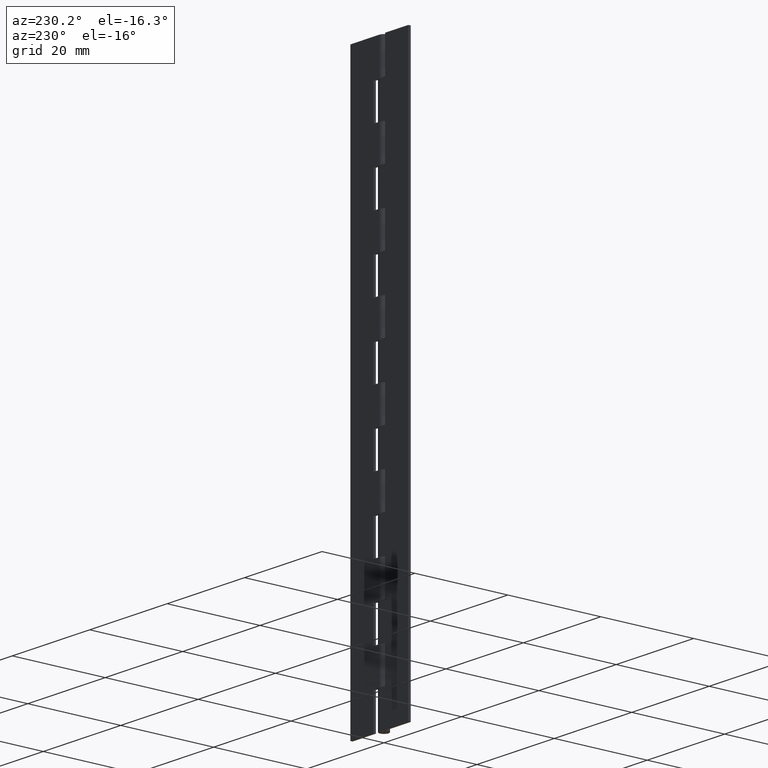
[diagram: clean part render]
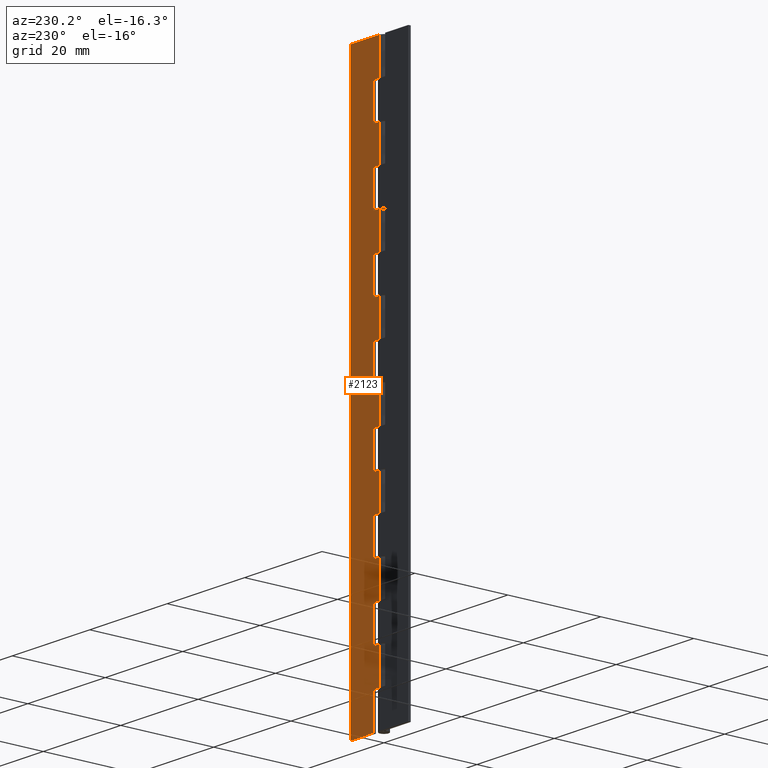
[diagram: same view with one face highlighted and labeled with its STEP entity id]
A machine part, auxiliary view. The second image highlights one B-rep face of the part: STEP entity #2123.
In plain terms, the highlighted face is a freeform B-spline surface patch.
Its self-contained STEP definition (entity closure, byte-faithful):
#51=CARTESIAN_POINT('',(0.0,1.0,112.500000000000000));
#52=VERTEX_POINT('',#51);
#72=CARTESIAN_POINT('',(1.500000000000000,1.0,112.500000000000000));
#73=VERTEX_POINT('',#72);
#74=CARTESIAN_POINT('',(1.500000000000000,1.0,112.500000000000000));
#75=CARTESIAN_POINT('',(0.0,1.0,112.500000000000000));
#76=QUASI_UNIFORM_CURVE('',1,(#74,#75),.UNSPECIFIED.,.F.,.U.);
#77=EDGE_CURVE('',#73,#52,#76,.T.);
#135=CARTESIAN_POINT('',(1.500000000000000,1.0,105.0));
#136=VERTEX_POINT('',#135);
#137=CARTESIAN_POINT('',(1.500000000000000,1.0,105.0));
#138=CARTESIAN_POINT('',(1.500000000000000,1.0,112.500000000000000));
#139=QUASI_UNIFORM_CURVE('',1,(#137,#138),.UNSPECIFIED.,.F.,.U.);
#140=EDGE_CURVE('',#136,#73,#139,.T.);
#155=CARTESIAN_POINT('',(0.0,1.0,105.0));
#156=VERTEX_POINT('',#155);
#212=CARTESIAN_POINT('',(0.0,1.0,105.0));
#213=CARTESIAN_POINT('',(1.500000000000000,1.0,105.0));
#214=QUASI_UNIFORM_CURVE('',1,(#212,#213),.UNSPECIFIED.,.F.,.U.);
#215=EDGE_CURVE('',#156,#136,#214,.T.);
#227=CARTESIAN_POINT('',(0.0,1.0,97.500000000000000));
#228=VERTEX_POINT('',#227);
#248=CARTESIAN_POINT('',(1.500000000000000,1.0,97.500000000000000));
#249=VERTEX_POINT('',#248);
#250=CARTESIAN_POINT('',(1.500000000000000,1.0,97.500000000000000));
#251=CARTESIAN_POINT('',(0.0,1.0,97.500000000000000));
#252=QUASI_UNIFORM_CURVE('',1,(#250,#251),.UNSPECIFIED.,.F.,.U.);
#253=EDGE_CURVE('',#249,#228,#252,.T.);
#311=CARTESIAN_POINT('',(1.500000000000000,1.0,90.0));
#312=VERTEX_POINT('',#311);
#313=CARTESIAN_POINT('',(1.500000000000000,1.0,90.0));
#314=CARTESIAN_POINT('',(1.500000000000000,1.0,97.500000000000000));
#315=QUASI_UNIFORM_CURVE('',1,(#313,#314),.UNSPECIFIED.,.F.,.U.);
#316=EDGE_CURVE('',#312,#249,#315,.T.);
#331=CARTESIAN_POINT('',(0.0,1.0,90.0));
#332=VERTEX_POINT('',#331);
#388=CARTESIAN_POINT('',(0.0,1.0,90.0));
#389=CARTESIAN_POINT('',(1.500000000000000,1.0,90.0));
#390=QUASI_UNIFORM_CURVE('',1,(#388,#389),.UNSPECIFIED.,.F.,.U.);
#391=EDGE_CURVE('',#332,#312,#390,.T.);
#403=CARTESIAN_POINT('',(0.0,1.0,82.500000000000000));
#404=VERTEX_POINT('',#403);
#424=CARTESIAN_POINT('',(1.500000000000000,1.0,82.500000000000000));
#425=VERTEX_POINT('',#424);
#426=CARTESIAN_POINT('',(1.500000000000000,1.0,82.500000000000000));
#427=CARTESIAN_POINT('',(0.0,1.0,82.500000000000000));
#428=QUASI_UNIFORM_CURVE('',1,(#426,#427),.UNSPECIFIED.,.F.,.U.);
#429=EDGE_CURVE('',#425,#404,#428,.T.);
#487=CARTESIAN_POINT('',(1.500000000000000,1.0,75.0));
#488=VERTEX_POINT('',#487);
#489=CARTESIAN_POINT('',(1.500000000000000,1.0,75.0));
#490=CARTESIAN_POINT('',(1.500000000000000,1.0,82.500000000000000));
#491=QUASI_UNIFORM_CURVE('',1,(#489,#490),.UNSPECIFIED.,.F.,.U.);
#492=EDGE_CURVE('',#488,#425,#491,.T.);
#507=CARTESIAN_POINT('',(0.0,1.0,75.0));
#508=VERTEX_POINT('',#507);
#564=CARTESIAN_POINT('',(0.0,1.0,75.0));
#565=CARTESIAN_POINT('',(1.500000000000000,1.0,75.0));
#566=QUASI_UNIFORM_CURVE('',1,(#564,#565),.UNSPECIFIED.,.F.,.U.);
#567=EDGE_CURVE('',#508,#488,#566,.T.);
#579=CARTESIAN_POINT('',(0.0,1.0,67.500000000000000));
#580=VERTEX_POINT('',#579);
#600=CARTESIAN_POINT('',(1.500000000000000,1.0,67.500000000000000));
#601=VERTEX_POINT('',#600);
#602=CARTESIAN_POINT('',(1.500000000000000,1.0,67.500000000000000));
#603=CARTESIAN_POINT('',(0.0,1.0,67.500000000000000));
#604=QUASI_UNIFORM_CURVE('',1,(#602,#603),.UNSPECIFIED.,.F.,.U.);
#605=EDGE_CURVE('',#601,#580,#604,.T.);
#663=CARTESIAN_POINT('',(1.500000000000000,1.0,60.0));
#664=VERTEX_POINT('',#663);
#665=CARTESIAN_POINT('',(1.500000000000000,1.0,60.0));
#666=CARTESIAN_POINT('',(1.500000000000000,1.0,67.500000000000000));
#667=QUASI_UNIFORM_CURVE('',1,(#665,#666),.UNSPECIFIED.,.F.,.U.);
#668=EDGE_CURVE('',#664,#601,#667,.T.);
#683=CARTESIAN_POINT('',(0.0,1.0,60.0));
#684=VERTEX_POINT('',#683);
#740=CARTESIAN_POINT('',(0.0,1.0,60.0));
#741=CARTESIAN_POINT('',(1.500000000000000,1.0,60.0));
#742=QUASI_UNIFORM_CURVE('',1,(#740,#741),.UNSPECIFIED.,.F.,.U.);
#743=EDGE_CURVE('',#684,#664,#742,.T.);
#755=CARTESIAN_POINT('',(0.0,1.0,52.500000000000000));
#756=VERTEX_POINT('',#755);
#776=CARTESIAN_POINT('',(1.500000000000000,1.0,52.500000000000000));
#777=VERTEX_POINT('',#776);
#778=CARTESIAN_POINT('',(1.500000000000000,1.0,52.500000000000000));
#779=CARTESIAN_POINT('',(0.0,1.0,52.500000000000000));
#780=QUASI_UNIFORM_CURVE('',1,(#778,#779),.UNSPECIFIED.,.F.,.U.);
#781=EDGE_CURVE('',#777,#756,#780,.T.);
#839=CARTESIAN_POINT('',(1.500000000000000,1.0,45.0));
#840=VERTEX_POINT('',#839);
#841=CARTESIAN_POINT('',(1.500000000000000,1.0,45.0));
#842=CARTESIAN_POINT('',(1.500000000000000,1.0,52.500000000000000));
#843=QUASI_UNIFORM_CURVE('',1,(#841,#842),.UNSPECIFIED.,.F.,.U.);
#844=EDGE_CURVE('',#840,#777,#843,.T.);
#859=CARTESIAN_POINT('',(0.0,1.0,45.0));
#860=VERTEX_POINT('',#859);
#916=CARTESIAN_POINT('',(0.0,1.0,45.0));
#917=CARTESIAN_POINT('',(1.500000000000000,1.0,45.0));
#918=QUASI_UNIFORM_CURVE('',1,(#916,#917),.UNSPECIFIED.,.F.,.U.);
#919=EDGE_CURVE('',#860,#840,#918,.T.);
#931=CARTESIAN_POINT('',(0.0,1.0,37.500000000000000));
#932=VERTEX_POINT('',#931);
#952=CARTESIAN_POINT('',(1.500000000000000,1.0,37.500000000000000));
#953=VERTEX_POINT('',#952);
#954=CARTESIAN_POINT('',(1.500000000000000,1.0,37.500000000000000));
#955=CARTESIAN_POINT('',(0.0,1.0,37.500000000000000));
#956=QUASI_UNIFORM_CURVE('',1,(#954,#955),.UNSPECIFIED.,.F.,.U.);
#957=EDGE_CURVE('',#953,#932,#956,.T.);
#1015=CARTESIAN_POINT('',(1.500000000000000,1.0,30.0));
#1016=VERTEX_POINT('',#1015);
#1017=CARTESIAN_POINT('',(1.500000000000000,1.0,30.0));
#1018=CARTESIAN_POINT('',(1.500000000000000,1.0,37.500000000000000));
#1019=QUASI_UNIFORM_CURVE('',1,(#1017,#1018),.UNSPECIFIED.,.F.,.U.);
#1020=EDGE_CURVE('',#1016,#953,#1019,.T.);
#1035=CARTESIAN_POINT('',(0.0,1.0,30.0));
#1036=VERTEX_POINT('',#1035);
#1092=CARTESIAN_POINT('',(0.0,1.0,30.0));
#1093=CARTESIAN_POINT('',(1.500000000000000,1.0,30.0));
#1094=QUASI_UNIFORM_CURVE('',1,(#1092,#1093),.UNSPECIFIED.,.F.,.U.);
#1095=EDGE_CURVE('',#1036,#1016,#1094,.T.);
#1107=CARTESIAN_POINT('',(0.0,1.0,22.500000000000000));
#1108=VERTEX_POINT('',#1107);
#1128=CARTESIAN_POINT('',(1.500000000000000,1.0,22.500000000000000));
#1129=VERTEX_POINT('',#1128);
#1130=CARTESIAN_POINT('',(1.500000000000000,1.0,22.500000000000000));
#1131=CARTESIAN_POINT('',(0.0,1.0,22.500000000000000));
#1132=QUASI_UNIFORM_CURVE('',1,(#1130,#1131),.UNSPECIFIED.,.F.,.U.);
#1133=EDGE_CURVE('',#1129,#1108,#1132,.T.);
#1191=CARTESIAN_POINT('',(1.500000000000000,1.0,15.0));
#1192=VERTEX_POINT('',#1191);
#1193=CARTESIAN_POINT('',(1.500000000000000,1.0,15.0));
#1194=CARTESIAN_POINT('',(1.500000000000000,1.0,22.500000000000000));
#1195=QUASI_UNIFORM_CURVE('',1,(#1193,#1194),.UNSPECIFIED.,.F.,.U.);
#1196=EDGE_CURVE('',#1192,#1129,#1195,.T.);
#1211=CARTESIAN_POINT('',(0.0,1.0,15.0));
#1212=VERTEX_POINT('',#1211);
#1268=CARTESIAN_POINT('',(0.0,1.0,15.0));
#1269=CARTESIAN_POINT('',(1.500000000000000,1.0,15.0));
#1270=QUASI_UNIFORM_CURVE('',1,(#1268,#1269),.UNSPECIFIED.,.F.,.U.);
#1271=EDGE_CURVE('',#1212,#1192,#1270,.T.);
#1290=CARTESIAN_POINT('',(1.500000000000000,1.0,7.500000000000000));
#1291=VERTEX_POINT('',#1290);
#1297=CARTESIAN_POINT('',(1.500000000000000,1.0,0.0));
#1298=VERTEX_POINT('',#1297);
#1299=CARTESIAN_POINT('',(1.500000000000000,1.0,0.0));
#1300=CARTESIAN_POINT('',(1.500000000000000,1.0,7.500000000000000));
#1301=QUASI_UNIFORM_CURVE('',1,(#1299,#1300),.UNSPECIFIED.,.F.,.U.);
#1302=EDGE_CURVE('',#1298,#1291,#1301,.T.);
#1319=CARTESIAN_POINT('',(0.0,1.0,7.500000000000000));
#1320=VERTEX_POINT('',#1319);
#1340=CARTESIAN_POINT('',(1.500000000000000,1.0,7.500000000000000));
#1341=CARTESIAN_POINT('',(0.0,1.0,7.500000000000000));
#1342=QUASI_UNIFORM_CURVE('',1,(#1340,#1341),.UNSPECIFIED.,.F.,.U.);
#1343=EDGE_CURVE('',#1291,#1320,#1342,.T.);
#1417=CARTESIAN_POINT('',(7.500000000000000,1.0,120.0));
#1418=VERTEX_POINT('',#1417);
#1424=CARTESIAN_POINT('',(0.0,1.0,120.0));
#1425=VERTEX_POINT('',#1424);
#1426=CARTESIAN_POINT('',(7.500000000000000,1.0,120.0));
#1427=CARTESIAN_POINT('',(0.0,1.0,120.0));
#1428=QUASI_UNIFORM_CURVE('',1,(#1426,#1427),.UNSPECIFIED.,.F.,.U.);
#1429=EDGE_CURVE('',#1418,#1425,#1428,.T.);
#1467=CARTESIAN_POINT('',(7.500000000000000,1.0,0.0));
#1468=VERTEX_POINT('',#1467);
#1474=CARTESIAN_POINT('',(7.500000000000000,1.0,120.0));
#1475=CARTESIAN_POINT('',(7.500000000000000,1.0,0.0));
#1476=QUASI_UNIFORM_CURVE('',1,(#1474,#1475),.UNSPECIFIED.,.F.,.U.);
#1477=EDGE_CURVE('',#1418,#1468,#1476,.T.);
#1494=CARTESIAN_POINT('',(7.500000000000000,1.0,0.0));
#1495=CARTESIAN_POINT('',(1.500000000000000,1.0,0.0));
#1496=QUASI_UNIFORM_CURVE('',1,(#1494,#1495),.UNSPECIFIED.,.F.,.U.);
#1497=EDGE_CURVE('',#1468,#1298,#1496,.T.);
#1531=CARTESIAN_POINT('',(0.0,1.0,15.0));
#1532=CARTESIAN_POINT('',(0.0,1.0,7.500000000000000));
#1533=QUASI_UNIFORM_CURVE('',1,(#1531,#1532),.UNSPECIFIED.,.F.,.U.);
#1534=EDGE_CURVE('',#1212,#1320,#1533,.T.);
#1617=CARTESIAN_POINT('',(0.0,1.0,30.0));
#1618=CARTESIAN_POINT('',(0.0,1.0,22.500000000000000));
#1619=QUASI_UNIFORM_CURVE('',1,(#1617,#1618),.UNSPECIFIED.,.F.,.U.);
#1620=EDGE_CURVE('',#1036,#1108,#1619,.T.);
#1703=CARTESIAN_POINT('',(0.0,1.0,45.0));
#1704=CARTESIAN_POINT('',(0.0,1.0,37.500000000000000));
#1705=QUASI_UNIFORM_CURVE('',1,(#1703,#1704),.UNSPECIFIED.,.F.,.U.);
#1706=EDGE_CURVE('',#860,#932,#1705,.T.);
#1789=CARTESIAN_POINT('',(0.0,1.0,60.0));
#1790=CARTESIAN_POINT('',(0.0,1.0,52.500000000000000));
#1791=QUASI_UNIFORM_CURVE('',1,(#1789,#1790),.UNSPECIFIED.,.F.,.U.);
#1792=EDGE_CURVE('',#684,#756,#1791,.T.);
#1875=CARTESIAN_POINT('',(0.0,1.0,75.0));
#1876=CARTESIAN_POINT('',(0.0,1.0,67.500000000000000));
#1877=QUASI_UNIFORM_CURVE('',1,(#1875,#1876),.UNSPECIFIED.,.F.,.U.);
#1878=EDGE_CURVE('',#508,#580,#1877,.T.);
#1961=CARTESIAN_POINT('',(0.0,1.0,90.0));
#1962=CARTESIAN_POINT('',(0.0,1.0,82.500000000000000));
#1963=QUASI_UNIFORM_CURVE('',1,(#1961,#1962),.UNSPECIFIED.,.F.,.U.);
#1964=EDGE_CURVE('',#332,#404,#1963,.T.);
#2074=CARTESIAN_POINT('',(-0.374624985463545,1.0,125.993999767416700));
#2075=CARTESIAN_POINT('',(-0.374624985463545,1.0,-5.994002986067534));
#2076=CARTESIAN_POINT('',(7.874625186629221,1.0,125.993999767416700));
#2077=CARTESIAN_POINT('',(7.874625186629221,1.0,-5.994002986067534));
#2078=B_SPLINE_SURFACE_WITH_KNOTS('',1,1,((#2074,#2076),(#2075,#2077)),.UNSPECIFIED.,.F.,.F.,.U.,(2,2),(2,2),(0.0,131.988002753484210),(0.0,8.249250172092767),.UNSPECIFIED.);
#2079=ORIENTED_EDGE('',*,*,#215,.T.);
#2080=ORIENTED_EDGE('',*,*,#140,.T.);
#2081=ORIENTED_EDGE('',*,*,#77,.T.);
#2082=CARTESIAN_POINT('',(0.0,1.0,120.0));
#2083=CARTESIAN_POINT('',(0.0,1.0,112.500000000000000));
#2084=QUASI_UNIFORM_CURVE('',1,(#2082,#2083),.UNSPECIFIED.,.F.,.U.);
#2085=EDGE_CURVE('',#1425,#52,#2084,.T.);
#2086=ORIENTED_EDGE('',*,*,#2085,.F.);
#2087=ORIENTED_EDGE('',*,*,#1429,.F.);
#2088=ORIENTED_EDGE('',*,*,#1477,.T.);
#2089=ORIENTED_EDGE('',*,*,#1497,.T.);
#2090=ORIENTED_EDGE('',*,*,#1302,.T.);
#2091=ORIENTED_EDGE('',*,*,#1343,.T.);
#2092=ORIENTED_EDGE('',*,*,#1534,.F.);
#2093=ORIENTED_EDGE('',*,*,#1271,.T.);
#2094=ORIENTED_EDGE('',*,*,#1196,.T.);
#2095=ORIENTED_EDGE('',*,*,#1133,.T.);
#2096=ORIENTED_EDGE('',*,*,#1620,.F.);
#2097=ORIENTED_EDGE('',*,*,#1095,.T.);
#2098=ORIENTED_EDGE('',*,*,#1020,.T.);
#2099=ORIENTED_EDGE('',*,*,#957,.T.);
#2100=ORIENTED_EDGE('',*,*,#1706,.F.);
#2101=ORIENTED_EDGE('',*,*,#919,.T.);
#2102=ORIENTED_EDGE('',*,*,#844,.T.);
#2103=ORIENTED_EDGE('',*,*,#781,.T.);
#2104=ORIENTED_EDGE('',*,*,#1792,.F.);
#2105=ORIENTED_EDGE('',*,*,#743,.T.);
#2106=ORIENTED_EDGE('',*,*,#668,.T.);
#2107=ORIENTED_EDGE('',*,*,#605,.T.);
#2108=ORIENTED_EDGE('',*,*,#1878,.F.);
#2109=ORIENTED_EDGE('',*,*,#567,.T.);
#2110=ORIENTED_EDGE('',*,*,#492,.T.);
#2111=ORIENTED_EDGE('',*,*,#429,.T.);
#2112=ORIENTED_EDGE('',*,*,#1964,.F.);
#2113=ORIENTED_EDGE('',*,*,#391,.T.);
#2114=ORIENTED_EDGE('',*,*,#316,.T.);
#2115=ORIENTED_EDGE('',*,*,#253,.T.);
#2116=CARTESIAN_POINT('',(0.0,1.0,105.0));
#2117=CARTESIAN_POINT('',(0.0,1.0,97.500000000000000));
#2118=QUASI_UNIFORM_CURVE('',1,(#2116,#2117),.UNSPECIFIED.,.F.,.U.);
#2119=EDGE_CURVE('',#156,#228,#2118,.T.);
#2120=ORIENTED_EDGE('',*,*,#2119,.F.);
#2121=EDGE_LOOP('',(#2079,#2080,#2081,#2086,#2087,#2088,#2089,#2090,#2091,#2092,#2093,#2094,#2095,#2096,#2097,#2098,#2099,#2100,#2101,#2102,#2103,#2104,#2105,#2106,#2107,#2108,#2109,#2110,#2111,#2112,#2113,#2114,#2115,#2120));
#2122=FACE_OUTER_BOUND('',#2121,.T.);
#2123=ADVANCED_FACE('',(#2122),#2078,.F.);